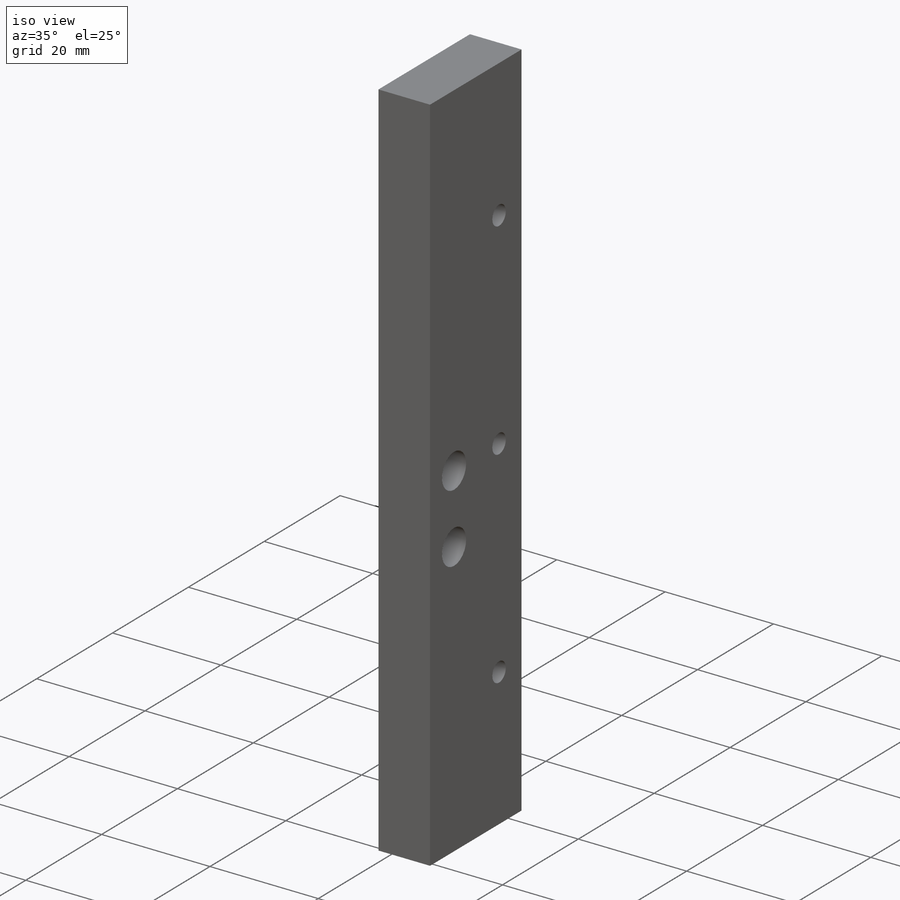
[diagram: iso view]
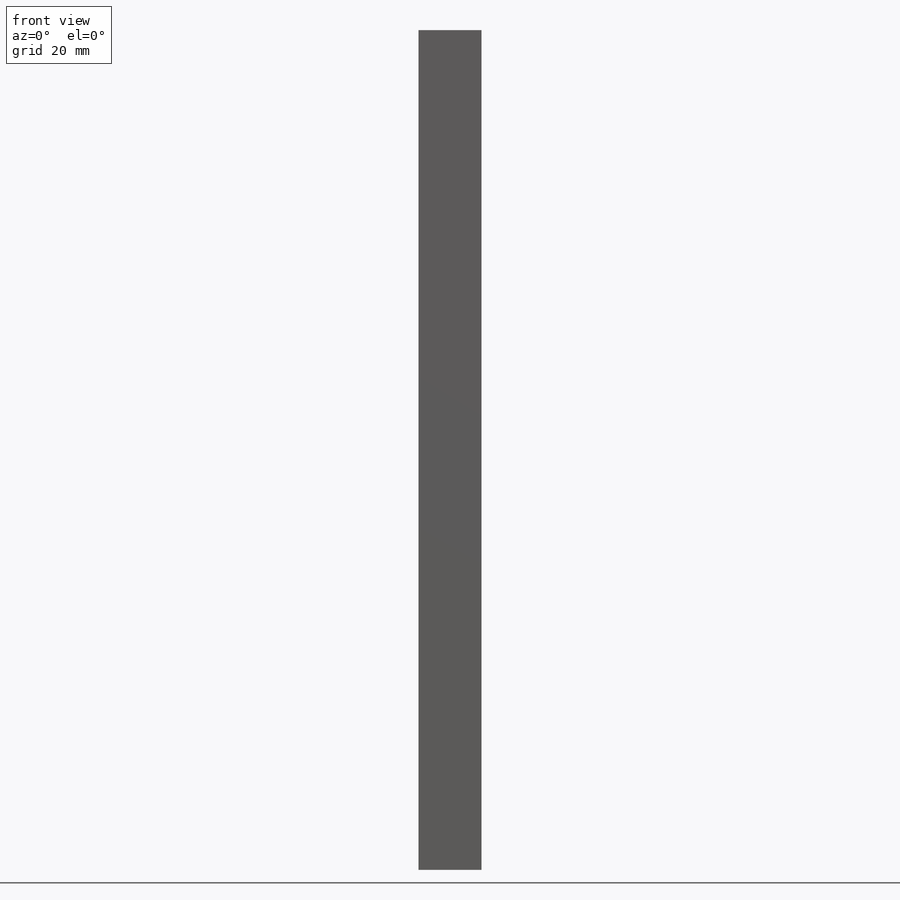
[diagram: front view]
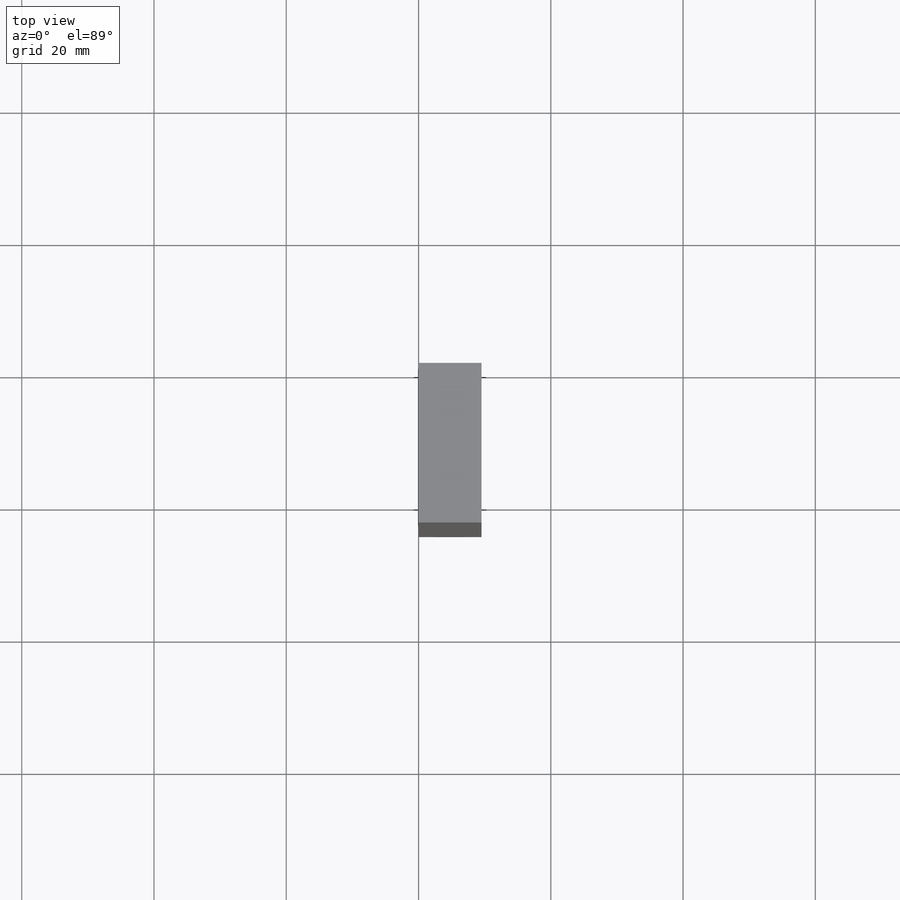
[diagram: top view]
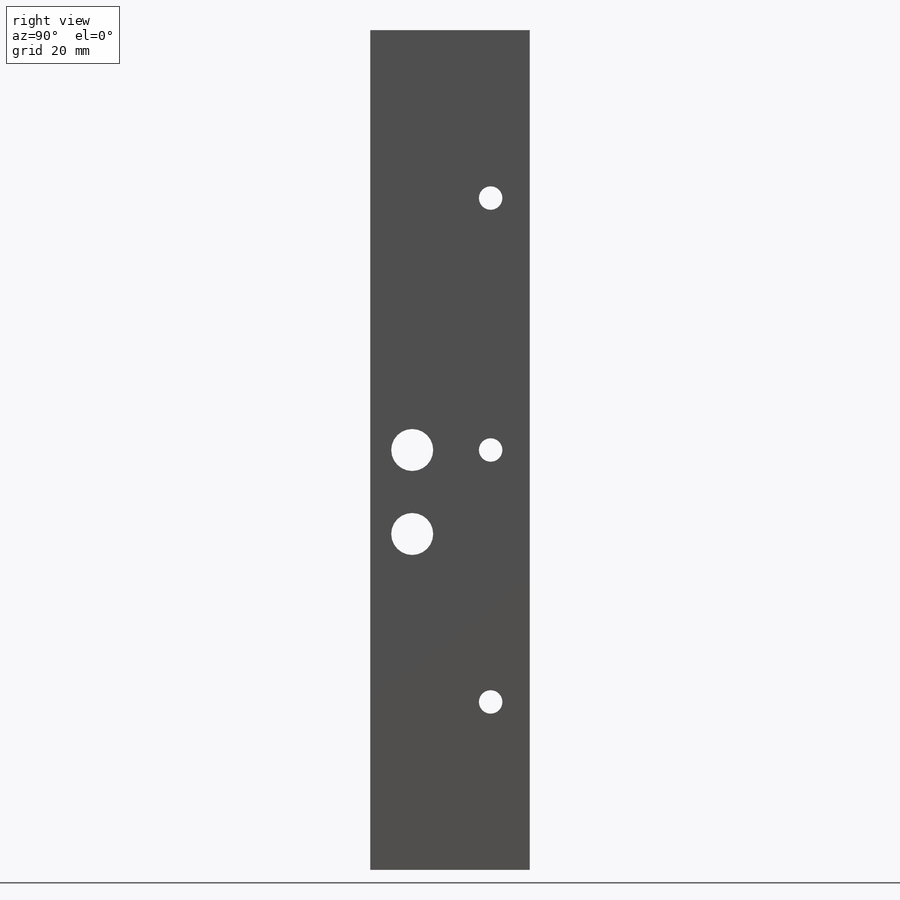
[diagram: right view]
SOLIDWORKS PART (.sldprt)
format: sldprt  version: not decoded by parser v0  size: 152,576 bytes
history: native  units: mm
features: sketch x3, cut_extrude x2, material x1, extrude x1 (+13 scaffold rows collapsed)
feature tree (20):
  scaffold x13  (default folders/planes/origin — collapsed)
  material  "Material <not specified>"
  sketch  "Sketch1"  dims[D1=9.525mm D2=127.0mm]
  extrude  "Boss-Extrude1"  Depth=24.13mm
  sketch  "Sketch2"  dims[c1.D2=3.556mm c1.D3=3.175mm c1.D1=5.9182mm c2.D3=25.4mm c2.D4=38.1mm c2.D5=38.1mm c2.D6=38.1mm]
  cut_extrude  "Cut-Extrude1"  [1 undecoded]
  sketch  "Sketch3"  dims[D1=6.35mm D2=6.35mm D3=12.7mm D4=6.35mm D5=63.5mm]
  cut_extrude  "Cut-Extrude2"  Depth=38.1mm
decode coverage: 5 of 6 modeling features carry decoded parameters
note: 1 parameter value undecoded
note: suppression state not decoded; provenance and decode notes live in map.json
